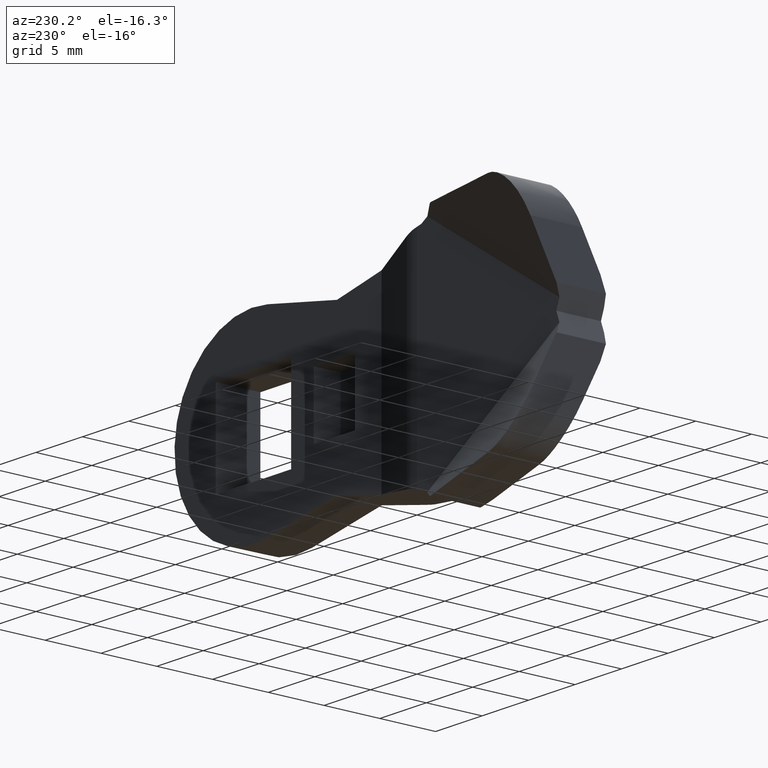
[diagram: clean part render]
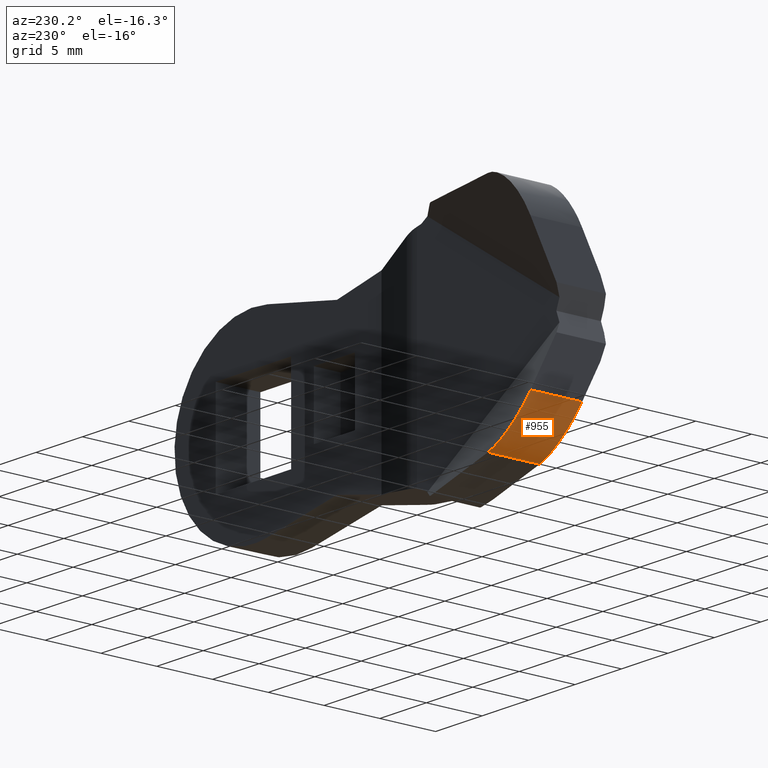
[diagram: same view with one face highlighted and labeled with its STEP entity id]
A machine part, auxiliary view. The second image highlights one B-rep face of the part: STEP entity #955.
In plain terms, the highlighted face is a freeform B-spline surface patch.
Its self-contained STEP definition (entity closure, byte-faithful):
#895=CARTESIAN_POINT('',(-31.534843031602190,3.771809886407329,-10.028408108150090));
#896=CARTESIAN_POINT('',(-31.534843031602190,-2.110833618434286,-10.028408108150090));
#897=CARTESIAN_POINT('',(-35.396028347605274,3.771809886407329,-9.918294929572731));
#898=CARTESIAN_POINT('',(-35.396028347605274,-2.110833618434287,-9.918294929572731));
#899=CARTESIAN_POINT('',(-35.420735671204739,3.771809886407329,-6.055618848825759));
#900=CARTESIAN_POINT('',(-35.420735671204739,-2.110833618434286,-6.055618848825759));
#908=(BOUNDED_SURFACE()B_SPLINE_SURFACE(1,2,((#895,#897,#899),(#896,#898,#900)),.UNSPECIFIED.,.F.,.F.,.U.)B_SPLINE_SURFACE_WITH_KNOTS((2,2),(3,3),(0.0,5.882643504841616),(0.0,6.464419613362510),.UNSPECIFIED.)GEOMETRIC_REPRESENTATION_ITEM()RATIONAL_B_SPLINE_SURFACE(((1.0,0.719339800338651,1.0),(1.0,0.719339800338651,1.0)))REPRESENTATION_ITEM('')SURFACE());
#909=CARTESIAN_POINT('',(-31.639469198980152,3.335817450836445,-10.024053124571640));
#910=VERTEX_POINT('',#909);
#911=CARTESIAN_POINT('',(-35.414167804088997,2.660803319190695,-6.260583718898571));
#912=VERTEX_POINT('',#911);
#913=CARTESIAN_POINT('',(-31.639469198980152,3.335817450836445,-10.024053124571640));
#914=CARTESIAN_POINT('',(-35.208168835478290,4.351076581058127,-9.828685461325534));
#915=CARTESIAN_POINT('',(-35.414167804088997,2.660803319190695,-6.260583718898571));
#923=(BOUNDED_CURVE()B_SPLINE_CURVE(2,(#913,#914,#915),.UNSPECIFIED.,.F.,.U.)CURVE()GEOMETRIC_REPRESENTATION_ITEM()QUASI_UNIFORM_CURVE()RATIONAL_B_SPLINE_CURVE((1.0,0.745695443792511,1.0))REPRESENTATION_ITEM(''));
#924=EDGE_CURVE('',#910,#912,#923,.T.);
#925=ORIENTED_EDGE('',*,*,#924,.F.);
#926=CARTESIAN_POINT('',(-31.639469198980152,-1.292340376914348,-10.024053124571640));
#927=VERTEX_POINT('',#926);
#928=CARTESIAN_POINT('',(-31.639469198980152,-1.292340376914348,-10.024053124571640));
#929=CARTESIAN_POINT('',(-31.639469198980152,3.335817450836445,-10.024053124571640));
#930=QUASI_UNIFORM_CURVE('',1,(#928,#929),.UNSPECIFIED.,.F.,.U.);
#931=EDGE_CURVE('',#927,#910,#930,.T.);
#932=ORIENTED_EDGE('',*,*,#931,.F.);
#933=CARTESIAN_POINT('',(-35.414167804088997,-1.967354508560100,-6.260583718898571));
#934=VERTEX_POINT('',#933);
#935=CARTESIAN_POINT('',(-35.414167804088997,-1.967354508560100,-6.260583718898571));
#936=CARTESIAN_POINT('',(-35.208168835478304,-0.277081246714915,-9.828685461313551));
#937=CARTESIAN_POINT('',(-31.639469198980152,-1.292340376914348,-10.024053124571640));
#945=(BOUNDED_CURVE()B_SPLINE_CURVE(2,(#935,#936,#937),.UNSPECIFIED.,.F.,.U.)CURVE()GEOMETRIC_REPRESENTATION_ITEM()QUASI_UNIFORM_CURVE()RATIONAL_B_SPLINE_CURVE((1.0,0.745695443793688,1.0))REPRESENTATION_ITEM(''));
#946=EDGE_CURVE('',#934,#927,#945,.T.);
#947=ORIENTED_EDGE('',*,*,#946,.F.);
#948=CARTESIAN_POINT('',(-35.414167804088997,2.660803319190695,-6.260583718898571));
#949=CARTESIAN_POINT('',(-35.414167804088997,-1.967354508560100,-6.260583718898571));
#950=QUASI_UNIFORM_CURVE('',1,(#948,#949),.UNSPECIFIED.,.F.,.U.);
#951=EDGE_CURVE('',#912,#934,#950,.T.);
#952=ORIENTED_EDGE('',*,*,#951,.F.);
#953=EDGE_LOOP('',(#925,#932,#947,#952));
#954=FACE_OUTER_BOUND('',#953,.T.);
#955=ADVANCED_FACE('',(#954),#908,.T.);